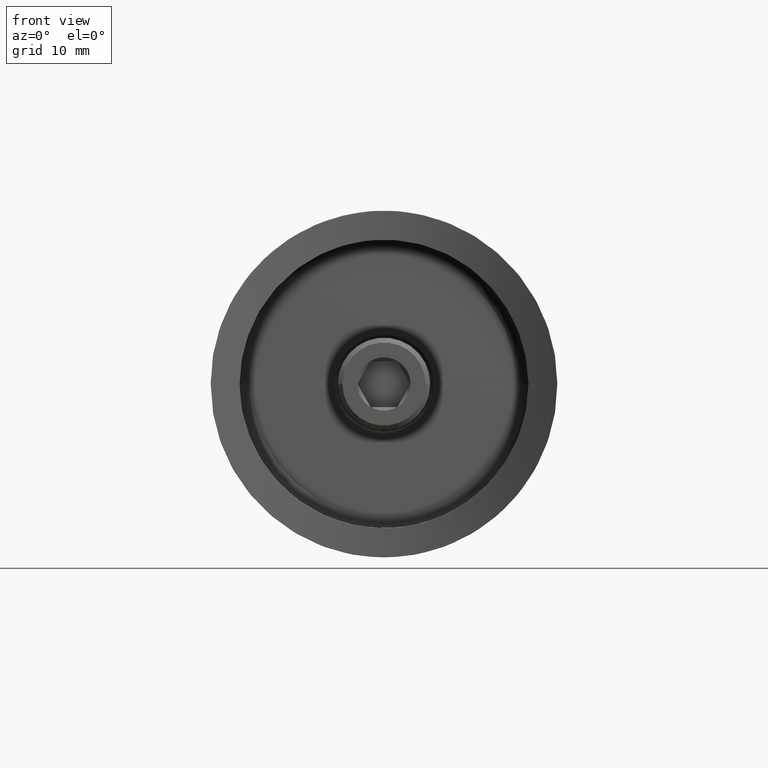
[diagram: clean part render]
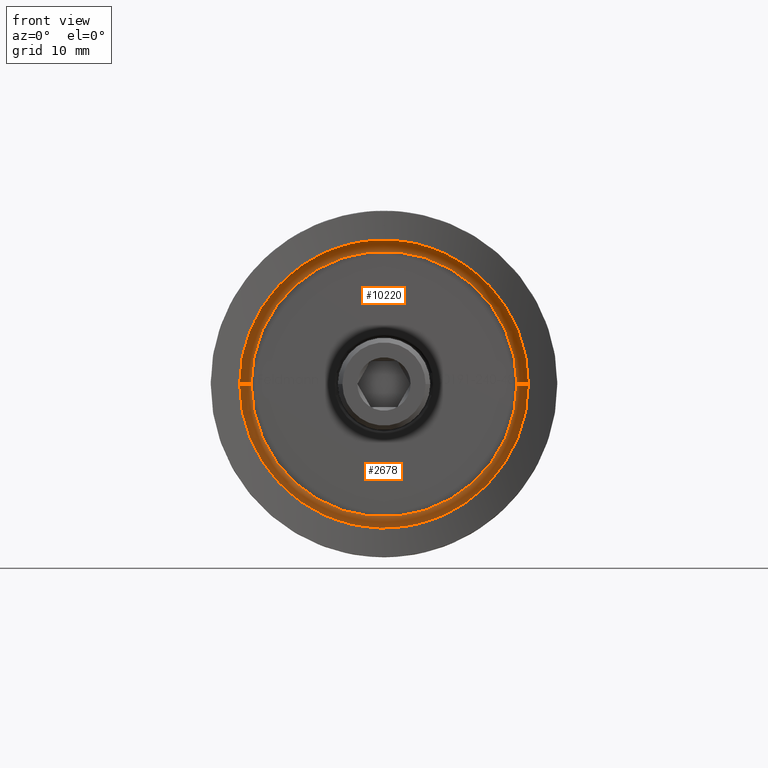
[diagram: same view with one multi-face feature highlighted, each face labeled with its STEP entity id]
A machine part, front view. The highlighted faces form ONE feature: a constant-radius fillet chain: 2 tangent blend faces with common blend radius 1 mm. The faces share edges in the B-rep.
Their STEP definitions:
[1] entity #2678 (Torus):
#239 = FACE_OUTER_BOUND ( 'NONE', #2021, .T. ) ;
#1553 = CARTESIAN_POINT ( 'NONE',  ( -11.50000000000000178, 9.499999999999994671, 1.408343819019456176E-15 ) ) ;
#1649 = AXIS2_PLACEMENT_3D ( 'NONE', #15589, #11624, #12909 ) ;
#1741 = DIRECTION ( 'NONE',  ( -1.650797095189058802E-31, -1.000000000000000000, -0.000000000000000000 ) ) ;
#2021 = EDGE_LOOP ( 'NONE', ( #14888, #7077, #8268, #15721 ) ) ;
#2557 = CARTESIAN_POINT ( 'NONE',  ( 12.49999999999999822, 9.499999999999994671, 0.000000000000000000 ) ) ;
#2678 = ADVANCED_FACE ( 'NONE', ( #239 ), #3385, .F. ) ;
#3098 = CARTESIAN_POINT ( 'NONE',  ( -2.571758278209441661E-15, 10.49999999999999467, 0.000000000000000000 ) ) ;
#3311 = EDGE_CURVE ( 'NONE', #13021, #10799, #16223, .T. ) ;
#3385 = TOROIDAL_SURFACE ( 'NONE', #1649, 11.50000000000000000, 1.000000000000000000 ) ;
#3860 = VERTEX_POINT ( 'NONE', #17192 ) ;
#3902 = DIRECTION ( 'NONE',  ( 1.650797095189058802E-31, 1.000000000000000000, 0.000000000000000000 ) ) ;
#5538 = DIRECTION ( 'NONE',  ( 1.000000000000000000, 0.000000000000000000, -1.224646799147353454E-16 ) ) ;
#5616 = AXIS2_PLACEMENT_3D ( 'NONE', #11190, #7935, #16339 ) ;
#6079 = EDGE_CURVE ( 'NONE', #10799, #11941, #10542, .T. ) ;
#7077 = ORIENTED_EDGE ( 'NONE', *, *, #16687, .T. ) ;
#7736 = CARTESIAN_POINT ( 'NONE',  ( -11.50000000000000178, 10.49999999999999467, 1.469576158976823947E-15 ) ) ;
#7935 = DIRECTION ( 'NONE',  ( 0.000000000000000000, 0.000000000000000000, -1.000000000000000000 ) ) ;
#7954 = DIRECTION ( 'NONE',  ( 1.000000000000000000, 0.000000000000000000, 0.000000000000000000 ) ) ;
#7963 = EDGE_CURVE ( 'NONE', #11941, #3860, #15841, .T. ) ;
#8268 = ORIENTED_EDGE ( 'NONE', *, *, #7963, .F. ) ;
#9280 = CARTESIAN_POINT ( 'NONE',  ( -2.571758278209441661E-15, 9.499999999999994671, 0.000000000000000000 ) ) ;
#9355 = DIRECTION ( 'NONE',  ( 1.000000000000000000, 0.000000000000000000, 0.000000000000000000 ) ) ;
#10121 = CIRCLE ( 'NONE', #15535, 0.9999999999999991118 ) ;
#10542 = CIRCLE ( 'NONE', #5616, 0.9999999999999991118 ) ;
#10799 = VERTEX_POINT ( 'NONE', #11427 ) ;
#10838 = DIRECTION ( 'NONE',  ( 1.224646799147353207E-16, -2.021643378665029326E-47, 1.000000000000000000 ) ) ;
#11190 = CARTESIAN_POINT ( 'NONE',  ( 11.49999999999999822, 9.499999999999994671, 0.000000000000000000 ) ) ;
#11427 = CARTESIAN_POINT ( 'NONE',  ( 11.49999999999999822, 10.49999999999999467, 0.000000000000000000 ) ) ;
#11624 = DIRECTION ( 'NONE',  ( -1.650797095189058802E-31, -1.000000000000000000, -0.000000000000000000 ) ) ;
#11941 = VERTEX_POINT ( 'NONE', #2557 ) ;
#11989 = AXIS2_PLACEMENT_3D ( 'NONE', #3098, #1741, #9355 ) ;
#12909 = DIRECTION ( 'NONE',  ( 1.000000000000000000, -1.650797095189058802E-31, 0.000000000000000000 ) ) ;
#13021 = VERTEX_POINT ( 'NONE', #7736 ) ;
#14888 = ORIENTED_EDGE ( 'NONE', *, *, #3311, .F. ) ;
#15535 = AXIS2_PLACEMENT_3D ( 'NONE', #1553, #10838, #5538 ) ;
#15589 = CARTESIAN_POINT ( 'NONE',  ( -2.571758278209441661E-15, 9.499999999999994671, 0.000000000000000000 ) ) ;
#15721 = ORIENTED_EDGE ( 'NONE', *, *, #6079, .F. ) ;
#15824 = AXIS2_PLACEMENT_3D ( 'NONE', #9280, #3902, #7954 ) ;
#15841 = CIRCLE ( 'NONE', #15824, 12.50000000000000000 ) ;
#16223 = CIRCLE ( 'NONE', #11989, 11.50000000000000000 ) ;
#16339 = DIRECTION ( 'NONE',  ( -1.000000000000000000, 0.000000000000000000, 0.000000000000000000 ) ) ;
#16687 = EDGE_CURVE ( 'NONE', #13021, #3860, #10121, .T. ) ;
#17192 = CARTESIAN_POINT ( 'NONE',  ( -12.50000000000000178, 9.499999999999994671, 1.530808498934191521E-15 ) ) ;
[2] entity #10220 (Torus):
#917 = DIRECTION ( 'NONE',  ( -1.650797095189058802E-31, -1.000000000000000000, -0.000000000000000000 ) ) ;
#1553 = CARTESIAN_POINT ( 'NONE',  ( -11.50000000000000178, 9.499999999999994671, 1.408343819019456176E-15 ) ) ;
#2557 = CARTESIAN_POINT ( 'NONE',  ( 12.49999999999999822, 9.499999999999994671, 0.000000000000000000 ) ) ;
#2927 = ORIENTED_EDGE ( 'NONE', *, *, #6079, .T. ) ;
#3166 = DIRECTION ( 'NONE',  ( 1.000000000000000000, -1.650797095189058802E-31, 0.000000000000000000 ) ) ;
#3549 = DIRECTION ( 'NONE',  ( 1.000000000000000000, 0.000000000000000000, 0.000000000000000000 ) ) ;
#3860 = VERTEX_POINT ( 'NONE', #17192 ) ;
#5538 = DIRECTION ( 'NONE',  ( 1.000000000000000000, 0.000000000000000000, -1.224646799147353454E-16 ) ) ;
#5616 = AXIS2_PLACEMENT_3D ( 'NONE', #11190, #7935, #16339 ) ;
#5697 = DIRECTION ( 'NONE',  ( 1.000000000000000000, 0.000000000000000000, 0.000000000000000000 ) ) ;
#5819 = TOROIDAL_SURFACE ( 'NONE', #15167, 11.50000000000000000, 1.000000000000000000 ) ;
#6079 = EDGE_CURVE ( 'NONE', #10799, #11941, #10542, .T. ) ;
#6127 = AXIS2_PLACEMENT_3D ( 'NONE', #7059, #9438, #5697 ) ;
#6792 = CARTESIAN_POINT ( 'NONE',  ( -2.571758278209441661E-15, 9.499999999999994671, 0.000000000000000000 ) ) ;
#7059 = CARTESIAN_POINT ( 'NONE',  ( -2.571758278209441661E-15, 9.499999999999994671, 0.000000000000000000 ) ) ;
#7736 = CARTESIAN_POINT ( 'NONE',  ( -11.50000000000000178, 10.49999999999999467, 1.469576158976823947E-15 ) ) ;
#7935 = DIRECTION ( 'NONE',  ( 0.000000000000000000, 0.000000000000000000, -1.000000000000000000 ) ) ;
#9342 = ORIENTED_EDGE ( 'NONE', *, *, #14880, .F. ) ;
#9438 = DIRECTION ( 'NONE',  ( 1.650797095189058802E-31, 1.000000000000000000, 0.000000000000000000 ) ) ;
#9458 = DIRECTION ( 'NONE',  ( -1.650797095189058802E-31, -1.000000000000000000, -0.000000000000000000 ) ) ;
#10100 = ORIENTED_EDGE ( 'NONE', *, *, #16687, .F. ) ;
#10121 = CIRCLE ( 'NONE', #15535, 0.9999999999999991118 ) ;
#10220 = ADVANCED_FACE ( 'NONE', ( #14566 ), #5819, .F. ) ;
#10542 = CIRCLE ( 'NONE', #5616, 0.9999999999999991118 ) ;
#10799 = VERTEX_POINT ( 'NONE', #11427 ) ;
#10838 = DIRECTION ( 'NONE',  ( 1.224646799147353207E-16, -2.021643378665029326E-47, 1.000000000000000000 ) ) ;
#11190 = CARTESIAN_POINT ( 'NONE',  ( 11.49999999999999822, 9.499999999999994671, 0.000000000000000000 ) ) ;
#11427 = CARTESIAN_POINT ( 'NONE',  ( 11.49999999999999822, 10.49999999999999467, 0.000000000000000000 ) ) ;
#11792 = EDGE_LOOP ( 'NONE', ( #10100, #16366, #2927, #9342 ) ) ;
#11941 = VERTEX_POINT ( 'NONE', #2557 ) ;
#12178 = AXIS2_PLACEMENT_3D ( 'NONE', #12766, #917, #3549 ) ;
#12766 = CARTESIAN_POINT ( 'NONE',  ( -2.571758278209441661E-15, 10.49999999999999467, 0.000000000000000000 ) ) ;
#13021 = VERTEX_POINT ( 'NONE', #7736 ) ;
#14566 = FACE_OUTER_BOUND ( 'NONE', #11792, .T. ) ;
#14675 = CIRCLE ( 'NONE', #12178, 11.50000000000000000 ) ;
#14880 = EDGE_CURVE ( 'NONE', #3860, #11941, #16157, .T. ) ;
#15167 = AXIS2_PLACEMENT_3D ( 'NONE', #6792, #9458, #3166 ) ;
#15535 = AXIS2_PLACEMENT_3D ( 'NONE', #1553, #10838, #5538 ) ;
#16157 = CIRCLE ( 'NONE', #6127, 12.50000000000000000 ) ;
#16339 = DIRECTION ( 'NONE',  ( -1.000000000000000000, 0.000000000000000000, 0.000000000000000000 ) ) ;
#16366 = ORIENTED_EDGE ( 'NONE', *, *, #16842, .F. ) ;
#16687 = EDGE_CURVE ( 'NONE', #13021, #3860, #10121, .T. ) ;
#16842 = EDGE_CURVE ( 'NONE', #10799, #13021, #14675, .T. ) ;
#17192 = CARTESIAN_POINT ( 'NONE',  ( -12.50000000000000178, 9.499999999999994671, 1.530808498934191521E-15 ) ) ;